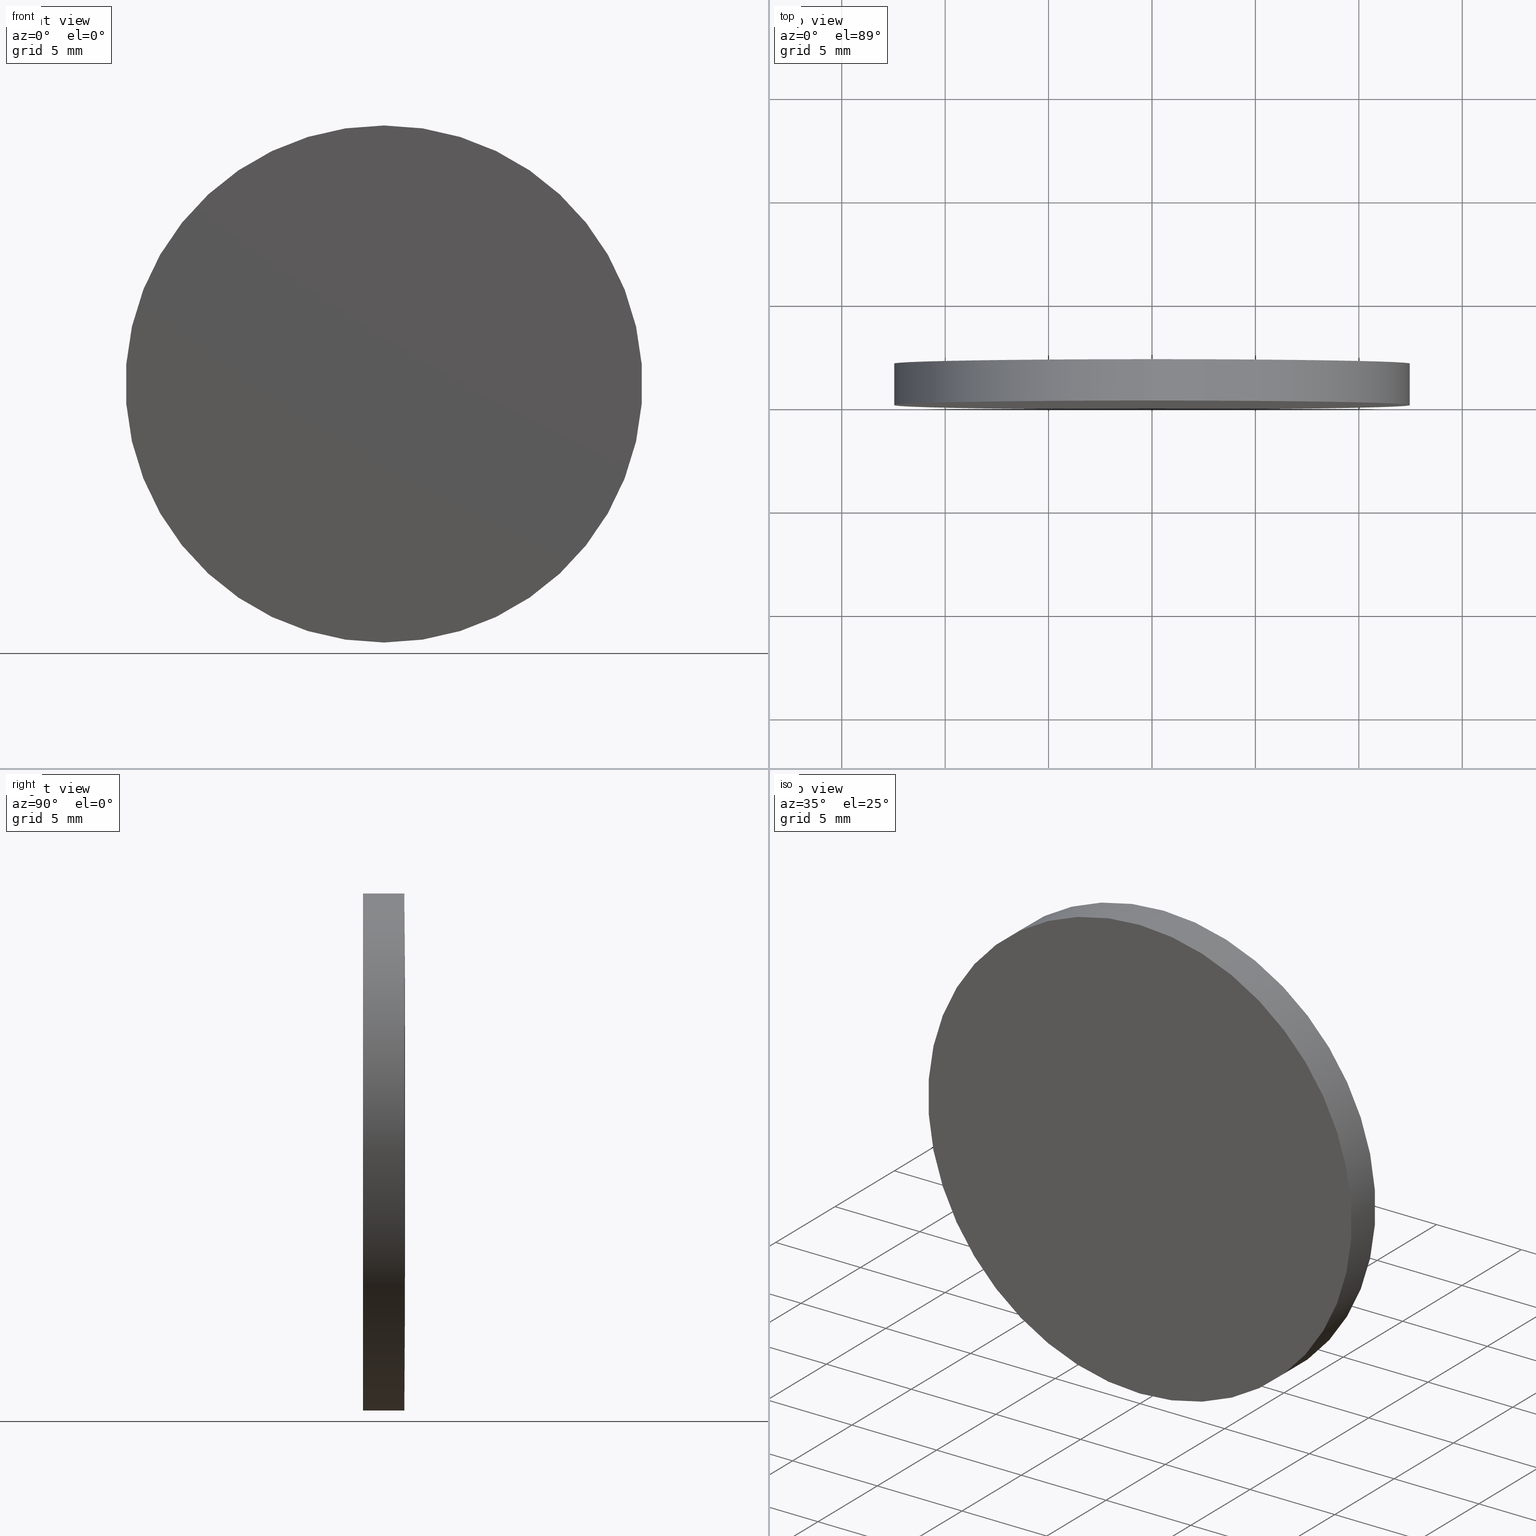
[diagram: canonical four-view strip — front | top / right | iso, engineering-drawing reading convention]
A machine part, canonical four-view strip (front | top / right | iso — engineering-drawing reading convention). The complete STEP part file that produces these views, byte-faithful:
ISO-10303-21;
HEADER;
FILE_DESCRIPTION (( 'STEP AP203' ),
    '1' );
FILE_NAME ('100570.STEP',
    '2024-05-09T07:46:49',
    ( '' ),
    ( '' ),
    'SwSTEP 2.0',
    'SolidWorks 2020',
    '' );
FILE_SCHEMA (( 'CONFIG_CONTROL_DESIGN' ));
ENDSEC;

DATA;
#1 = DIRECTION ( 'NONE',  ( 0.000000000000000000, 0.000000000000000000, 1.000000000000000000 ) ) ;
#2 = ORIENTED_EDGE ( 'NONE', *, *, #197, .F. ) ;
#3 = ORIENTED_EDGE ( 'NONE', *, *, #38, .T. ) ;
#4 = DIRECTION ( 'NONE',  ( 0.000000000000000000, 0.000000000000000000, 1.000000000000000000 ) ) ;
#5 = CARTESIAN_POINT ( 'NONE',  ( 0.000000000000000000, -1289.965409658435419, 3.045887344046879885 ) ) ;
#6 = LINE ( 'NONE', #47, #173 ) ;
#7 = COORDINATED_UNIVERSAL_TIME_OFFSET ( 8, 0, .AHEAD. ) ;
#8 = FACE_OUTER_BOUND ( 'NONE', #63, .T. ) ;
#9 = CARTESIAN_POINT ( 'NONE',  ( 0.000000000000000000, 2.000000000000000000, 12.49999999999517009 ) ) ;
#10 = ORGANIZATION ( 'δָ��', 'δָ��', '' ) ;
#11 = ADVANCED_FACE ( 'NONE', ( #26 ), #120, .T. ) ;
#12 = AXIS2_PLACEMENT_3D ( 'NONE', #28, #89, #194 ) ;
#13 = CC_DESIGN_PERSON_AND_ORGANIZATION_ASSIGNMENT ( #16, #175, ( #78 ) ) ;
#14 = PERSON_AND_ORGANIZATION_ROLE ( 'design_supplier' ) ;
#15 = LOCAL_TIME ( 15, 46, 49.00000000000000000, #7 ) ;
#16 = PERSON_AND_ORGANIZATION ( #163, #10 ) ;
#17 = DIRECTION ( 'NONE',  ( -0.000000000000000000, 1.000000000000000000, -0.000000000000000000 ) ) ;
#18 = AXIS2_PLACEMENT_3D ( 'NONE', #130, #65, #134 ) ;
#19 = COORDINATED_UNIVERSAL_TIME_OFFSET ( 8, 0, .AHEAD. ) ;
#20 = ORIENTED_EDGE ( 'NONE', *, *, #95, .F. ) ;
#21 = AXIS2_PLACEMENT_3D ( 'NONE', #90, #150, #30 ) ;
#22 = AXIS2_PLACEMENT_3D ( 'NONE', #60, #158, #177 ) ;
#23 = APPLICATION_CONTEXT ( 'configuration controlled 3d designs of mechanical parts and assemblies' ) ;
#24 = CARTESIAN_POINT ( 'NONE',  ( 0.000000000000000000, -1.734723475976807094E-15, 0.000000000000000000 ) ) ;
#25 = CC_DESIGN_PERSON_AND_ORGANIZATION_ASSIGNMENT ( #190, #14, ( #71 ) ) ;
#26 = FACE_OUTER_BOUND ( 'NONE', #54, .T. ) ;
#27 = ORIENTED_EDGE ( 'NONE', *, *, #34, .T. ) ;
#28 = CARTESIAN_POINT ( 'NONE',  ( 0.000000000000000000, -1289.965409658435419, 0.000000000000000000 ) ) ;
#29 = ADVANCED_FACE ( 'NONE', ( #53 ), #104, .T. ) ;
#30 = DIRECTION ( 'NONE',  ( 1.224646799147353207E-16, 0.000000000000000000, -1.000000000000000000 ) ) ;
#31 = CIRCLE ( 'NONE', #102, 12.50000000000000000 ) ;
#32 = CC_DESIGN_PERSON_AND_ORGANIZATION_ASSIGNMENT ( #145, #129, ( #71 ) ) ;
#33 = COORDINATED_UNIVERSAL_TIME_OFFSET ( 8, 0, .AHEAD. ) ;
#34 = EDGE_CURVE ( 'NONE', #164, #167, #112, .T. ) ;
#35 = APPROVAL_STATUS ( 'not_yet_approved' ) ;
#36 = APPLICATION_PROTOCOL_DEFINITION ( 'international standard', 'config_control_design', 1994, #23 ) ;
#37 = APPROVAL_STATUS ( 'not_yet_approved' ) ;
#38 = EDGE_CURVE ( 'NONE', #85, #55, #142, .T. ) ;
#39 = DIRECTION ( 'NONE',  ( -0.000000000000000000, 1.000000000000000000, -0.000000000000000000 ) ) ;
#40 = APPROVAL_PERSON_ORGANIZATION ( #135, #100, #110 ) ;
#41 = CARTESIAN_POINT ( 'NONE',  ( 0.000000000000000000, 2.031000000000000139, 0.000000000000000000 ) ) ;
#42 = DIRECTION ( 'NONE',  ( 0.000000000000000000, 0.000000000000000000, 1.000000000000000000 ) ) ;
#43 = ORIENTED_EDGE ( 'NONE', *, *, #165, .F. ) ;
#44 = DIRECTION ( 'NONE',  ( -0.000000000000000000, 1.000000000000000000, -0.000000000000000000 ) ) ;
#45 = EDGE_LOOP ( 'NONE', ( #157, #27, #20 ) ) ;
#46 = DATE_TIME_ROLE ( 'classification_date' ) ;
#47 = CARTESIAN_POINT ( 'NONE',  ( 1.530808498934191521E-15, 2.031000000000000139, -12.50000000000000000 ) ) ;
#48 = APPROVAL ( #37, 'δָ��' ) ;
#49 = CIRCLE ( 'NONE', #201, 12.50000000000000000 ) ;
#50 = PRODUCT_DEFINITION_SHAPE ( 'NONE', 'NONE',  #78 ) ;
#51 = PERSON_AND_ORGANIZATION ( #163, #10 ) ;
#52 = DATE_TIME_ROLE ( 'creation_date' ) ;
#53 = FACE_OUTER_BOUND ( 'NONE', #98, .T. ) ;
#54 = EDGE_LOOP ( 'NONE', ( #149, #3, #81, #56 ) ) ;
#55 = VERTEX_POINT ( 'NONE', #179 ) ;
#56 = ORIENTED_EDGE ( 'NONE', *, *, #187, .F. ) ;
#57 = LINE ( 'NONE', #182, #185 ) ;
#58 = CIRCLE ( 'NONE', #113, 1292.000000000000000 ) ;
#59 = SHAPE_DEFINITION_REPRESENTATION ( #50, #174 ) ;
#60 = CARTESIAN_POINT ( 'NONE',  ( 0.000000000000000000, 0.000000000000000000, 0.000000000000000000 ) ) ;
#61 = CARTESIAN_POINT ( 'NONE',  ( 0.000000000000000000, 2.031000000000000139, 0.000000000000000000 ) ) ;
#62 =( GEOMETRIC_REPRESENTATION_CONTEXT ( 3 ) GLOBAL_UNCERTAINTY_ASSIGNED_CONTEXT ( ( #68 ) ) GLOBAL_UNIT_ASSIGNED_CONTEXT ( ( #115, #141, #189 ) ) REPRESENTATION_CONTEXT ( 'NONE', 'WORKASPACE' ) );
#63 = EDGE_LOOP ( 'NONE', ( #74, #192, #2, #43 ) ) ;
#64 = PERSON_AND_ORGANIZATION_ROLE ( 'design_owner' ) ;
#65 = DIRECTION ( 'NONE',  ( 0.000000000000000000, -1.000000000000000000, 0.000000000000000000 ) ) ;
#66 = ORIENTED_EDGE ( 'NONE', *, *, #172, .F. ) ;
#67 = DIRECTION ( 'NONE',  ( -0.000000000000000000, 1.000000000000000000, -0.000000000000000000 ) ) ;
#68 = UNCERTAINTY_MEASURE_WITH_UNIT (LENGTH_MEASURE( 1.000000000000000082E-05 ), #115, 'distance_accuracy_value', 'NONE');
#69 = CALENDAR_DATE ( 2024, 9, 5 ) ;
#70 = DIRECTION ( 'NONE',  ( 0.000000000000000000, 0.000000000000000000, 1.000000000000000000 ) ) ;
#71 = PRODUCT_DEFINITION_FORMATION_WITH_SPECIFIED_SOURCE ( '�κ�', '', #86, .NOT_KNOWN. ) ;
#72 = TOROIDAL_SURFACE ( 'NONE', #183, 3.045887344046879885, 1292.000000000000000 ) ;
#73 = ADVANCED_FACE ( 'NONE', ( #8 ), #151, .T. ) ;
#74 = ORIENTED_EDGE ( 'NONE', *, *, #172, .T. ) ;
#75 = DATE_AND_TIME ( #77, #131 ) ;
#76 = APPROVAL_PERSON_ORGANIZATION ( #116, #139, #101 ) ;
#77 = CALENDAR_DATE ( 2024, 9, 5 ) ;
#78 = PRODUCT_DEFINITION ( 'δ֪', '', #71, #107 ) ;
#79 = CALENDAR_DATE ( 2024, 9, 5 ) ;
#80 = AXIS2_PLACEMENT_3D ( 'NONE', #144, #17, #4 ) ;
#81 = ORIENTED_EDGE ( 'NONE', *, *, #165, .T. ) ;
#82 = APPROVAL_DATE_TIME ( #75, #139 ) ;
#83 = ORIENTED_EDGE ( 'NONE', *, *, #38, .F. ) ;
#84 = DIRECTION ( 'NONE',  ( -0.000000000000000000, 1.000000000000000000, -0.000000000000000000 ) ) ;
#85 = VERTEX_POINT ( 'NONE', #147 ) ;
#86 = PRODUCT ( '100570', '100570', '', ( #96 ) ) ;
#87 = DIRECTION ( 'NONE',  ( 0.000000000000000000, 0.000000000000000000, 1.000000000000000000 ) ) ;
#88 = APPROVAL_STATUS ( 'not_yet_approved' ) ;
#89 = DIRECTION ( 'NONE',  ( -0.000000000000000000, 1.000000000000000000, -0.000000000000000000 ) ) ;
#90 = CARTESIAN_POINT ( 'NONE',  ( 3.730136186450443837E-16, -1289.965409658435419, -3.045887344046879885 ) ) ;
#91 = LOCAL_TIME ( 15, 46, 49.00000000000000000, #19 ) ;
#92 = TOROIDAL_SURFACE ( 'NONE', #12, 3.045887344046879885, 1292.000000000000000 ) ;
#93 = CC_DESIGN_PERSON_AND_ORGANIZATION_ASSIGNMENT ( #114, #64, ( #86 ) ) ;
#94 = APPROVAL_ROLE ( '' ) ;
#95 = EDGE_CURVE ( 'NONE', #108, #167, #58, .T. ) ;
#96 = MECHANICAL_CONTEXT ( 'NONE', #146, 'mechanical' ) ;
#97 = CLOSED_SHELL ( 'NONE', ( #73, #133, #121, #29, #11 ) ) ;
#98 = EDGE_LOOP ( 'NONE', ( #66, #83 ) ) ;
#99 = CALENDAR_DATE ( 2024, 9, 5 ) ;
#100 = APPROVAL ( #88, 'δָ��' ) ;
#101 = APPROVAL_ROLE ( '' ) ;
#102 = AXIS2_PLACEMENT_3D ( 'NONE', #125, #200, #1 ) ;
#103 = ORIENTED_EDGE ( 'NONE', *, *, #187, .T. ) ;
#104 = PLANE ( 'NONE',  #18 ) ;
#105 = DIRECTION ( 'NONE',  ( 0.000000000000000000, 0.000000000000000000, 1.000000000000000000 ) ) ;
#106 = EDGE_LOOP ( 'NONE', ( #180, #103, #169 ) ) ;
#107 = DESIGN_CONTEXT ( 'detailed design', #23, 'design' ) ;
#108 = VERTEX_POINT ( 'NONE', #9 ) ;
#109 = CC_DESIGN_APPROVAL ( #48, ( #78 ) ) ;
#110 = APPROVAL_ROLE ( '' ) ;
#111 = EDGE_CURVE ( 'NONE', #85, #164, #6, .T. ) ;
#112 = CIRCLE ( 'NONE', #21, 1292.000000000000000 ) ;
#113 = AXIS2_PLACEMENT_3D ( 'NONE', #5, #148, #166 ) ;
#114 = PERSON_AND_ORGANIZATION ( #163, #10 ) ;
#115 =( LENGTH_UNIT ( ) NAMED_UNIT ( * ) SI_UNIT ( .MILLI., .METRE. ) );
#116 = PERSON_AND_ORGANIZATION ( #163, #10 ) ;
#117 = DIRECTION ( 'NONE',  ( -0.000000000000000000, 1.000000000000000000, -0.000000000000000000 ) ) ;
#118 = LOCAL_TIME ( 15, 46, 49.00000000000000000, #196 ) ;
#119 = CARTESIAN_POINT ( 'NONE',  ( 0.000000000000000000, 2.031000000000000139, 0.000000000000000000 ) ) ;
#120 = CYLINDRICAL_SURFACE ( 'NONE', #193, 12.50000000000000000 ) ;
#121 = ADVANCED_FACE ( 'NONE', ( #132 ), #72, .T. ) ;
#122 = CARTESIAN_POINT ( 'NONE',  ( 0.000000000000000000, -1289.965409658435419, 0.000000000000000000 ) ) ;
#123 = APPROVAL_PERSON_ORGANIZATION ( #199, #48, #94 ) ;
#124 = CC_DESIGN_PERSON_AND_ORGANIZATION_ASSIGNMENT ( #51, #184, ( #198 ) ) ;
#125 = CARTESIAN_POINT ( 'NONE',  ( 0.000000000000000000, 1.999999999999998224, 0.000000000000000000 ) ) ;
#126 = MANIFOLD_SOLID_BREP ( '��ת1', #97 ) ;
#127 = DIRECTION ( 'NONE',  ( -0.000000000000000000, 1.000000000000000000, -0.000000000000000000 ) ) ;
#128 = DATE_AND_TIME ( #79, #91 ) ;
#129 = PERSON_AND_ORGANIZATION_ROLE ( 'creator' ) ;
#130 = CARTESIAN_POINT ( 'NONE',  ( 0.000000000000000000, -7.654042494670957606E-16, 0.000000000000000000 ) ) ;
#131 = LOCAL_TIME ( 15, 46, 49.00000000000000000, #162 ) ;
#132 = FACE_OUTER_BOUND ( 'NONE', #106, .T. ) ;
#133 = ADVANCED_FACE ( 'NONE', ( #181 ), #92, .T. ) ;
#134 = DIRECTION ( 'NONE',  ( 0.000000000000000000, -0.000000000000000000, -1.000000000000000000 ) ) ;
#135 = PERSON_AND_ORGANIZATION ( #163, #10 ) ;
#136 = CC_DESIGN_APPROVAL ( #139, ( #71 ) ) ;
#137 = PRODUCT_RELATED_PRODUCT_CATEGORY ( 'detail', '', ( #86 ) ) ;
#138 = DATE_AND_TIME ( #69, #15 ) ;
#139 = APPROVAL ( #35, 'δָ��' ) ;
#140 = SECURITY_CLASSIFICATION_LEVEL ( 'unclassified' ) ;
#141 =( NAMED_UNIT ( * ) PLANE_ANGLE_UNIT ( ) SI_UNIT ( $, .RADIAN. ) );
#142 = CIRCLE ( 'NONE', #155, 12.50000000000000000 ) ;
#143 = AXIS2_PLACEMENT_3D ( 'NONE', #41, #191, #105 ) ;
#144 = CARTESIAN_POINT ( 'NONE',  ( 0.000000000000000000, 1.999999999999998224, 0.000000000000000000 ) ) ;
#145 = PERSON_AND_ORGANIZATION ( #163, #10 ) ;
#146 = APPLICATION_CONTEXT ( 'configuration controlled 3d designs of mechanical parts and assemblies' ) ;
#147 = CARTESIAN_POINT ( 'NONE',  ( 1.530808498934191521E-15, -1.734723475976807094E-15, -12.50000000000000000 ) ) ;
#148 = DIRECTION ( 'NONE',  ( -1.000000000000000000, 0.000000000000000000, 0.000000000000000000 ) ) ;
#149 = ORIENTED_EDGE ( 'NONE', *, *, #111, .F. ) ;
#150 = DIRECTION ( 'NONE',  ( 1.000000000000000000, 0.000000000000000000, 1.224646799147353207E-16 ) ) ;
#151 = CYLINDRICAL_SURFACE ( 'NONE', #143, 12.50000000000000000 ) ;
#152 = CALENDAR_DATE ( 2024, 9, 5 ) ;
#153 = CC_DESIGN_SECURITY_CLASSIFICATION ( #198, ( #71 ) ) ;
#154 = CC_DESIGN_DATE_AND_TIME_ASSIGNMENT ( #171, #46, ( #198 ) ) ;
#155 = AXIS2_PLACEMENT_3D ( 'NONE', #24, #84, #87 ) ;
#156 = CIRCLE ( 'NONE', #80, 12.50000000000000000 ) ;
#157 = ORIENTED_EDGE ( 'NONE', *, *, #197, .T. ) ;
#158 = DIRECTION ( 'NONE',  ( 0.000000000000000000, 0.000000000000000000, 1.000000000000000000 ) ) ;
#159 = CARTESIAN_POINT ( 'NONE',  ( 0.000000000000000000, -1.734723475976807094E-15, 0.000000000000000000 ) ) ;
#160 = CC_DESIGN_APPROVAL ( #100, ( #198 ) ) ;
#161 = LOCAL_TIME ( 15, 46, 49.00000000000000000, #33 ) ;
#162 = COORDINATED_UNIVERSAL_TIME_OFFSET ( 8, 0, .AHEAD. ) ;
#163 = PERSON ( 'δָ��', 'δָ��', 'δָ��', ('δָ��'), ('δָ��'), ('δָ��') ) ;
#164 = VERTEX_POINT ( 'NONE', #168 ) ;
#165 = EDGE_CURVE ( 'NONE', #55, #108, #57, .T. ) ;
#166 = DIRECTION ( 'NONE',  ( 0.000000000000000000, 0.000000000000000000, 1.000000000000000000 ) ) ;
#167 = VERTEX_POINT ( 'NONE', #61 ) ;
#168 = CARTESIAN_POINT ( 'NONE',  ( 1.530808498933599678E-15, 2.000000000000000000, -12.49999999999517009 ) ) ;
#169 = ORIENTED_EDGE ( 'NONE', *, *, #95, .T. ) ;
#170 = CC_DESIGN_DATE_AND_TIME_ASSIGNMENT ( #128, #52, ( #78 ) ) ;
#171 = DATE_AND_TIME ( #152, #118 ) ;
#172 = EDGE_CURVE ( 'NONE', #55, #85, #49, .T. ) ;
#173 = VECTOR ( 'NONE', #67, 1000.000000000000000 ) ;
#174 = ADVANCED_BREP_SHAPE_REPRESENTATION ( '100570', ( #126, #22 ), #62 ) ;
#175 = PERSON_AND_ORGANIZATION_ROLE ( 'creator' ) ;
#176 = APPROVAL_DATE_TIME ( #186, #48 ) ;
#177 = DIRECTION ( 'NONE',  ( 1.000000000000000000, 0.000000000000000000, 0.000000000000000000 ) ) ;
#178 = APPLICATION_PROTOCOL_DEFINITION ( 'international standard', 'config_control_design', 1994, #146 ) ;
#179 = CARTESIAN_POINT ( 'NONE',  ( 0.000000000000000000, -1.734723475976807094E-15, 12.50000000000000000 ) ) ;
#180 = ORIENTED_EDGE ( 'NONE', *, *, #34, .F. ) ;
#181 = FACE_OUTER_BOUND ( 'NONE', #45, .T. ) ;
#182 = CARTESIAN_POINT ( 'NONE',  ( 0.000000000000000000, 2.031000000000000139, 12.50000000000000000 ) ) ;
#183 = AXIS2_PLACEMENT_3D ( 'NONE', #122, #44, #70 ) ;
#184 = PERSON_AND_ORGANIZATION_ROLE ( 'classification_officer' ) ;
#185 = VECTOR ( 'NONE', #39, 1000.000000000000000 ) ;
#186 = DATE_AND_TIME ( #99, #161 ) ;
#187 = EDGE_CURVE ( 'NONE', #164, #108, #156, .T. ) ;
#188 = DIRECTION ( 'NONE',  ( 0.000000000000000000, 0.000000000000000000, 1.000000000000000000 ) ) ;
#189 =( NAMED_UNIT ( * ) SI_UNIT ( $, .STERADIAN. ) SOLID_ANGLE_UNIT ( ) );
#190 = PERSON_AND_ORGANIZATION ( #163, #10 ) ;
#191 = DIRECTION ( 'NONE',  ( -0.000000000000000000, 1.000000000000000000, -0.000000000000000000 ) ) ;
#192 = ORIENTED_EDGE ( 'NONE', *, *, #111, .T. ) ;
#193 = AXIS2_PLACEMENT_3D ( 'NONE', #119, #117, #42 ) ;
#194 = DIRECTION ( 'NONE',  ( 0.000000000000000000, 0.000000000000000000, 1.000000000000000000 ) ) ;
#195 = APPROVAL_DATE_TIME ( #138, #100 ) ;
#196 = COORDINATED_UNIVERSAL_TIME_OFFSET ( 8, 0, .AHEAD. ) ;
#197 = EDGE_CURVE ( 'NONE', #108, #164, #31, .T. ) ;
#198 = SECURITY_CLASSIFICATION ( '', '', #140 ) ;
#199 = PERSON_AND_ORGANIZATION ( #163, #10 ) ;
#200 = DIRECTION ( 'NONE',  ( -0.000000000000000000, 1.000000000000000000, -0.000000000000000000 ) ) ;
#201 = AXIS2_PLACEMENT_3D ( 'NONE', #159, #127, #188 ) ;
ENDSEC;
END-ISO-10303-21;
